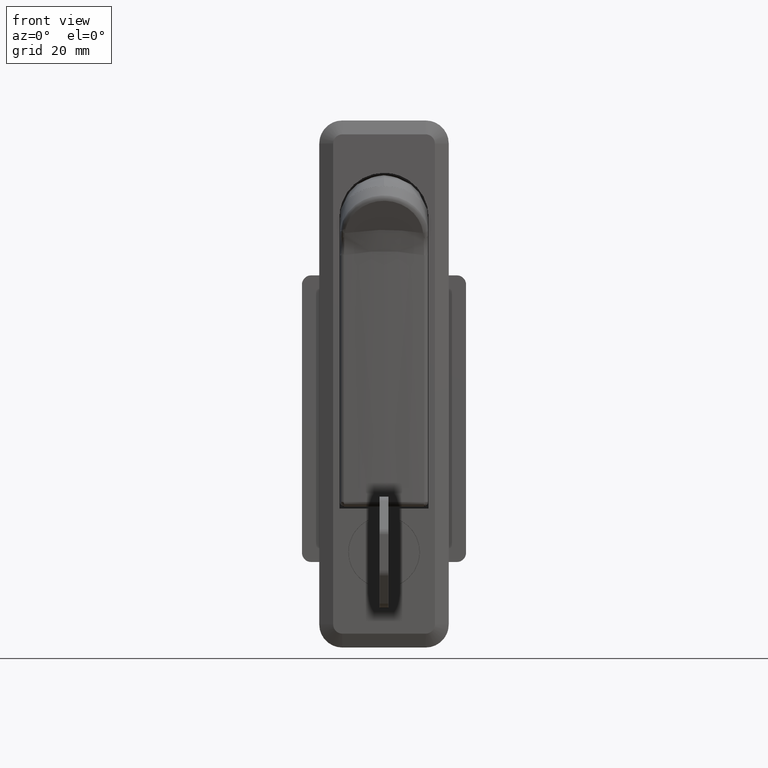
[diagram: clean part render]
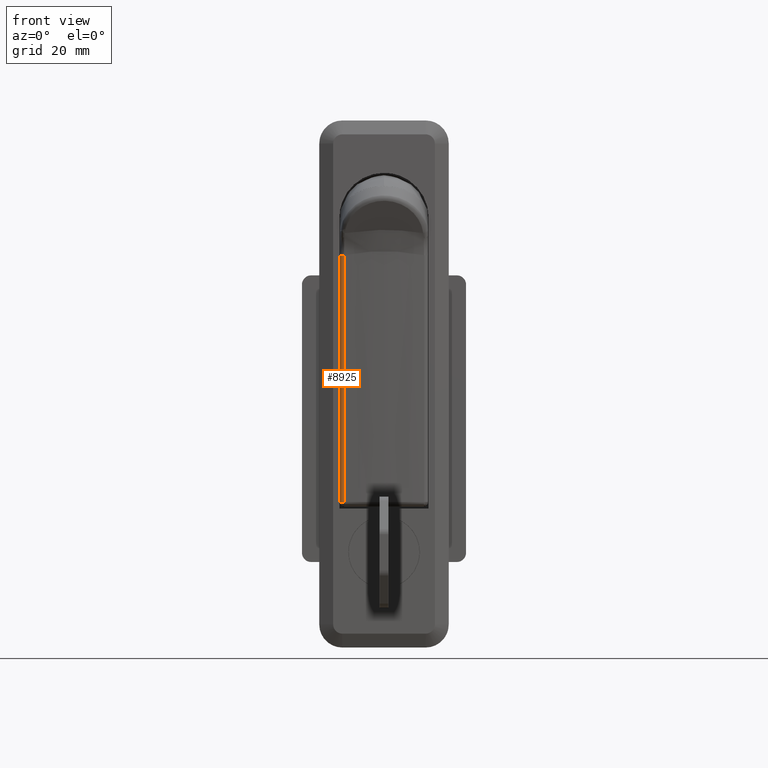
[diagram: same view with one face highlighted and labeled with its STEP entity id]
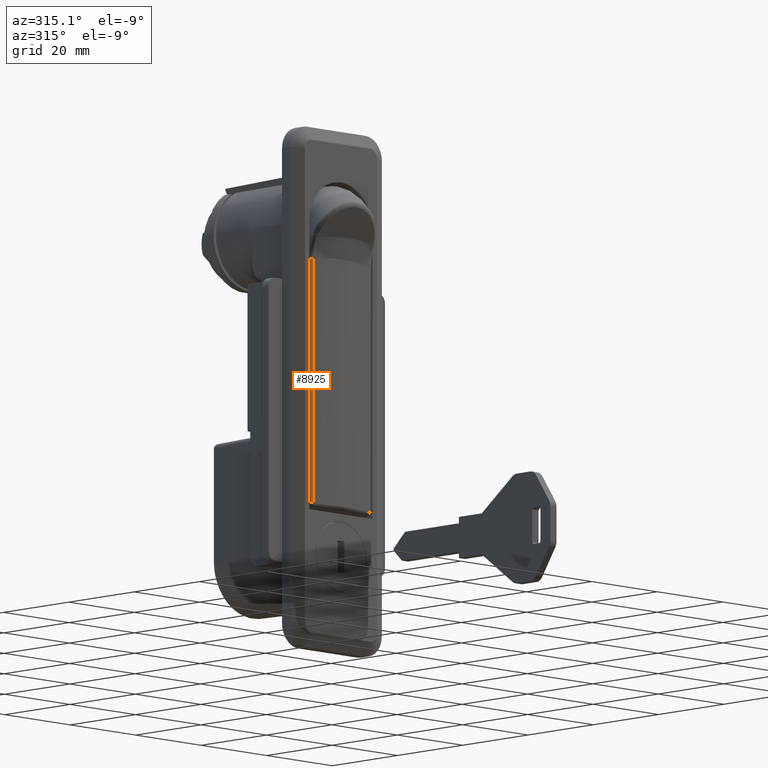
[diagram: same view with one face highlighted and labeled with its STEP entity id]
A machine part, front view. The second image highlights one B-rep face of the part: STEP entity #8925.
A second angle (auxiliary view) of the same face is appended — the face is thin or edge-on in the first view.
In plain terms, the highlighted face is a freeform B-spline surface patch.
Its self-contained STEP definition (entity closure, byte-faithful):
#7624=CARTESIAN_POINT('',(-8.644524750559700,-3.090522511815601,-8.143788632818842));
#7625=VERTEX_POINT('',#7624);
#7892=CARTESIAN_POINT('',(-8.644524750559700,-3.090522511815590,-61.500003110563100));
#7893=VERTEX_POINT('',#7892);
#7894=CARTESIAN_POINT('',(-8.644524750559700,-3.090522511815601,-8.143788632818842));
#7895=CARTESIAN_POINT('',(-8.644524750559700,-3.090522511815590,-61.500003110563100));
#7896=QUASI_UNIFORM_CURVE('',1,(#7894,#7895),.UNSPECIFIED.,.F.,.U.);
#7897=EDGE_CURVE('',#7625,#7893,#7896,.T.);
#8777=CARTESIAN_POINT('',(-9.549999999999999,-2.095000000000000,-61.500003110563100));
#8778=VERTEX_POINT('',#8777);
#8832=CARTESIAN_POINT('',(-8.644524750559700,-3.090522511815590,-61.500003110563100));
#8833=CARTESIAN_POINT('',(-8.813015364728255,-3.074907557169225,-61.500003110563100));
#8834=CARTESIAN_POINT('',(-9.096273162121364,-2.971337029655971,-61.500003110563092));
#8835=CARTESIAN_POINT('',(-9.350246855694692,-2.716620575998304,-61.500003110563149));
#8836=CARTESIAN_POINT('',(-9.507804100945972,-2.433160958051610,-61.500003110563107));
#8837=CARTESIAN_POINT('',(-9.550191560039597,-2.233429020430825,-61.500003110563107));
#8838=CARTESIAN_POINT('',(-9.549999999999999,-2.095000000000000,-61.500003110563100));
#8839=B_SPLINE_CURVE_WITH_KNOTS('',3,(#8832,#8833,#8834,#8835,#8836,#8837,#8838),.UNSPECIFIED.,.F.,.U.,(4,1,1,1,4),(0.000000229338647,0.507483349917153,0.876510582985048,1.061055215957758,1.476261012497028),.UNSPECIFIED.);
#8840=EDGE_CURVE('',#7893,#8778,#8839,.T.);
#8890=CARTESIAN_POINT('',(-9.549961923064172,-2.086273464501627,-6.809883270875234));
#8891=CARTESIAN_POINT('',(-9.549961923064172,-2.086273464501627,-62.867256106555303));
#8892=CARTESIAN_POINT('',(-9.558389040437906,-3.051925468839194,-6.809883270875234));
#8893=CARTESIAN_POINT('',(-9.558389040437906,-3.051925468839194,-62.867256106555303));
#8894=CARTESIAN_POINT('',(-8.593619387365337,-3.094048221581858,-6.809883270875234));
#8895=CARTESIAN_POINT('',(-8.593619387365337,-3.094048221581858,-62.867256106555303));
#8903=(BOUNDED_SURFACE()B_SPLINE_SURFACE(1,2,((#8890,#8892,#8894),(#8891,#8893,#8895)),.UNSPECIFIED.,.F.,.F.,.U.)B_SPLINE_SURFACE_WITH_KNOTS((2,2),(3,3),(0.0,56.057372835680070),(0.0,1.0),.UNSPECIFIED.)GEOMETRIC_REPRESENTATION_ITEM()RATIONAL_B_SPLINE_SURFACE(((1.0,0.719339800338651,1.0),(1.0,0.719339800338651,1.0)))REPRESENTATION_ITEM('')SURFACE());
#8904=CARTESIAN_POINT('',(-9.549999999999999,-2.095000000000000,-8.143788632818900));
#8905=VERTEX_POINT('',#8904);
#8906=CARTESIAN_POINT('',(-8.644524750559700,-3.090522511815601,-8.143788632818842));
#8907=CARTESIAN_POINT('',(-8.767014368003443,-3.079006310295590,-8.143788632818856));
#8908=CARTESIAN_POINT('',(-8.962377647449689,-3.022788388001152,-8.143788632818858));
#8909=CARTESIAN_POINT('',(-9.234495156688539,-2.844950505527437,-8.143788632818882));
#8910=CARTESIAN_POINT('',(-9.474054417793759,-2.555993174662345,-8.143788632818893));
#8911=CARTESIAN_POINT('',(-9.550379738634936,-2.264211043192150,-8.143788632818891));
#8912=CARTESIAN_POINT('',(-9.549999999999999,-2.095000000000000,-8.143788632818900));
#8913=B_SPLINE_CURVE_WITH_KNOTS('',3,(#8906,#8907,#8908,#8909,#8910,#8911,#8912),.UNSPECIFIED.,.F.,.U.,(4,1,1,1,4),(0.000000229338097,0.369065425127858,0.599750658850309,0.968777891918327,1.476261012497041),.UNSPECIFIED.);
#8914=EDGE_CURVE('',#7625,#8905,#8913,.T.);
#8915=ORIENTED_EDGE('',*,*,#8914,.T.);
#8916=CARTESIAN_POINT('',(-9.549999999999999,-2.095000000000000,-61.500003110563100));
#8917=CARTESIAN_POINT('',(-9.549999999999999,-2.095000000000000,-8.143788632818900));
#8918=QUASI_UNIFORM_CURVE('',1,(#8916,#8917),.UNSPECIFIED.,.F.,.U.);
#8919=EDGE_CURVE('',#8778,#8905,#8918,.T.);
#8920=ORIENTED_EDGE('',*,*,#8919,.F.);
#8921=ORIENTED_EDGE('',*,*,#8840,.F.);
#8922=ORIENTED_EDGE('',*,*,#7897,.F.);
#8923=EDGE_LOOP('',(#8915,#8920,#8921,#8922));
#8924=FACE_OUTER_BOUND('',#8923,.T.);
#8925=ADVANCED_FACE('',(#8924),#8903,.T.);